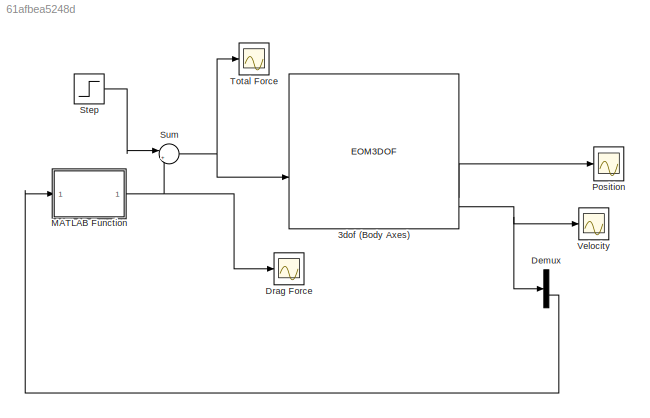
MODEL slx_61afbea5248d
KIND model
CONFIG AbsTol = auto
CONFIG EnableMultiTasking = off
CONFIG FixedStep = auto
CONFIG MaxStep = auto
CONFIG MinStep = auto
CONFIG RelTol = 1e-3
CONFIG SampleTimeConstraint = Unconstrained
CONFIG SolverName = VariableStepAuto
CONFIG StartTime = 0.0
CONFIG StopTime = 20
BLOCK [EOM3DOF] 3dof (Body Axes)
  g = -9.81
  v_ini = 0
BLOCK [Demux] Demux
  Outputs = 2
BLOCK [Scope] Drag Force
  DataLoggingVariableName = ScopeData2
  Floating = off
  GraphicalSettings = {"GraphicalSettings":{"LegacySettings":true,"Style":{"Style":{"PlotType":"Auto"}}}}
  NumInputPorts = 1
  WasSavedAsWebScope = on
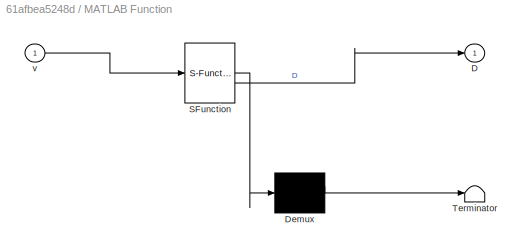
BLOCK [SubSystem] MATLAB Function
  ErrorFcn = Stateflow.Translate.translate
  PermitHierarchicalResolution = ExplicitOnly
  SFBlockType = MATLAB Function
  TreatAsAtomicUnit = on
BLOCK [Demux] MATLAB Function/ Demux 
  Outputs = 1
BLOCK [S-Function] MATLAB Function/ SFunction 
  EnableBusSupport = off
  FunctionName = sf_sfun
  PortCounts = [1 2]
  SFcnIsStateOwnerBlock = off
  SFunctionDeploymentMode = off
  Tag = Stateflow S-Function 2
BLOCK [Terminator] MATLAB Function/ Terminator 
BLOCK [Outport] MATLAB Function/D
BLOCK [Inport] MATLAB Function/v
BLOCK [Scope] Position
  ActiveDisplayYMaximum = 279.45
  ActiveDisplayYMinimum = -31.049999999999994
  Floating = off
  GraphicalSettings = {"Style":{"BackgroundColor":[0.12941176470588237,0.12941176470588237,0.12941176470588237],"AxesColor":[0.07058823529411765,0.07058823529411765,0.07058823529411765],"LabelsColor":[0.8509803921568627,0.8509803921568627,0.8509803921568627],"PreserveColors":false,"Visible":[true,true],"LineStyle":["-","-"],"LineWidth":[1.5,1.5],"BarWidth":[0.9,0.9],"LineColor":["auto","auto"],"LineFaceAlpha":[1,1],"Li...<+2118ch>
  MultipleDisplayCache = [{"MaxYLimMag":279.45,"MaxYLimReal":279.45,"MinYLimMag":0,"MinYLimReal":-31.049999999999994,"PlotAsMagnitudePhase":false,"ShowGrid":true,"ShowLegend":false,"Title":"%<SignalLabel>","YLabel":""}]
  NumInputPorts = 1
  ScopeFrameLocation = window
  WasSavedAsWebScope = on
  WindowPosition = [173.000000,52.000000,560.000000,420.000000,]
BLOCK [Step] Step
  After = 0
  Before = 44
  SampleTime = 0
  Time = 1.8
BLOCK [Sum] Sum
  Inputs = |++
BLOCK [Scope] Total Force
  DataLoggingVariableName = ScopeData3
  Floating = off
  GraphicalSettings = {"GraphicalSettings":{"LegacySettings":true,"Style":{"Style":{"PlotType":"Auto"}}}}
  NumInputPorts = 1
  WasSavedAsWebScope = on
BLOCK [Scope] Velocity
  ActiveDisplayYMaximum = 39.69
  ActiveDisplayYMinimum = -15.309999999999999
  DataLoggingVariableName = ScopeData1
  Floating = off
  GraphicalSettings = {"Style":{"BackgroundColor":[0.12941176470588237,0.12941176470588237,0.12941176470588237],"AxesColor":[0.07058823529411765,0.07058823529411765,0.07058823529411765],"LabelsColor":[0.8509803921568627,0.8509803921568627,0.8509803921568627],"PreserveColors":false,"Visible":[true,true],"LineStyle":["-","-"],"LineWidth":[1.5,1.5],"BarWidth":[0.9,0.9],"LineColor":["auto","auto"],"LineFaceAlpha":[1,1],"Li...<+2063ch>
  MultipleDisplayCache = [{"MaxYLimMag":39.69,"MaxYLimReal":39.69,"MinYLimMag":0,"MinYLimReal":-15.309999999999999,"PlotAsMagnitudePhase":false,"ShowGrid":true,"ShowLegend":false,"Title":"%<SignalLabel>","YLabel":""}]
  NumInputPorts = 1
  ScopeFrameLocation = window
  WasSavedAsWebScope = on
  WindowPosition = [440.000000,240.000000,560.000000,420.000000,]
LINE 3dof (Body Axes):4 -> Position:1
NET 3dof (Body Axes):6 -> Demux:1, Velocity:1
LINE Demux:2 -> MATLAB Function:1
NET MATLAB Function:1 -> Drag Force:1, Sum:2
LINE Step:1 -> Sum:1
NET Sum:1 -> 3dof (Body Axes):2, Total Force:1
note: NET lines group one-source signal fan-out (src -> all destinations, sorted); 1:1 wires keep LINE
CHART MATLAB Function states=1 transitions=1
  STATE_LABEL 'eML_blk_kernel()'
  STATE_LABEL 'SCRIPT:\nfunction D = computeDrag(v)\n\n% A - Rocket Reference Area (cross sectional area)\n% v - Current Velocity\n% rho - Atmospheric Density\n% C_D - Drag Coefficient\n\nA = 0.00353; % m^2 - get right units\nrho = 1.44; % kg/m^3\nC_D = 0.4;\n\n% Negative sign for drag to be applied towards ground direction\nD = -0.5 * C_D * rho * A * (v^2);\n\nend\n'
CHART  states=0 transitions=0
